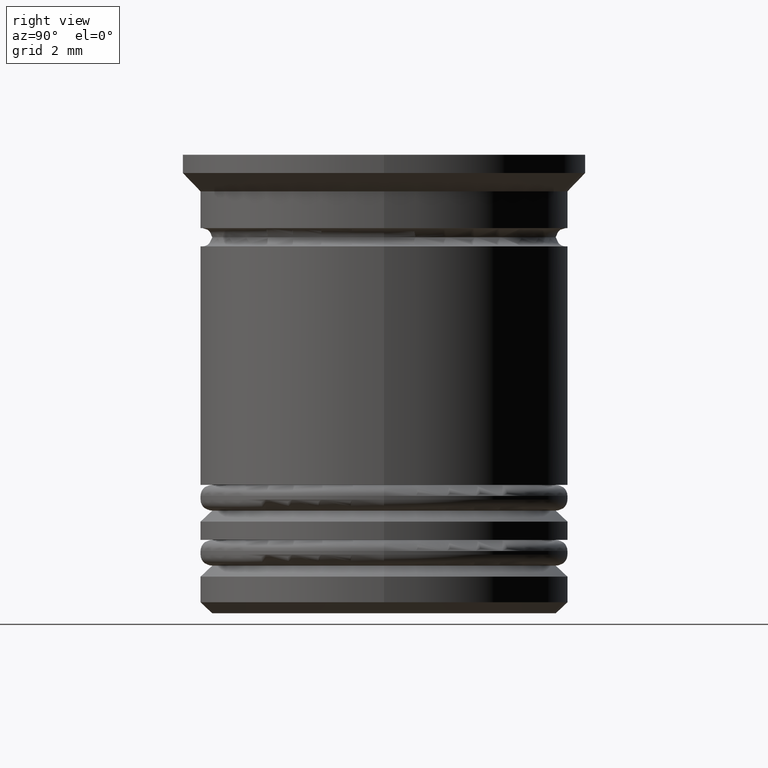
[diagram: clean part render]
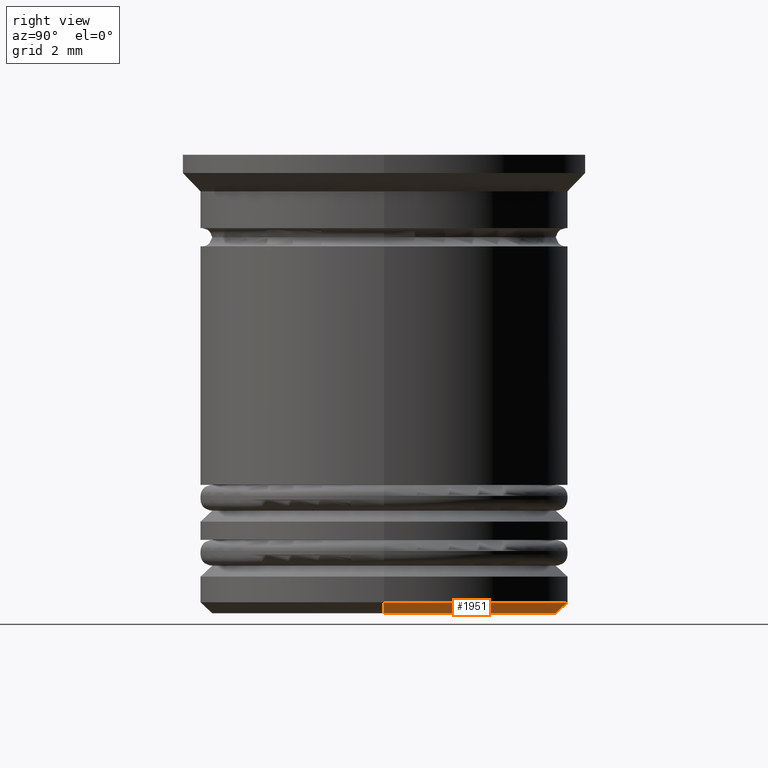
[diagram: same view with one face highlighted and labeled with its STEP entity id]
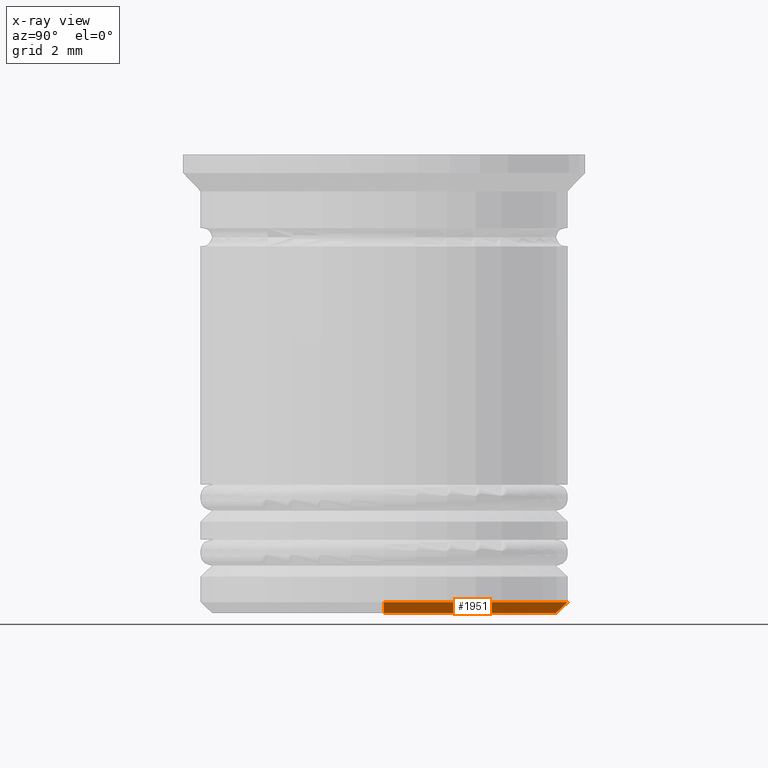
[diagram: x-ray of the same camera — body ghosted, the highlighted face saturated]
A machine part, right view. The second image highlights one B-rep face of the part: STEP entity #1951.
The next image is the same camera in x-ray: the body ghosted, the highlighted face saturated — about 0% of this face is hidden behind the body in this view.
In plain terms, the highlighted conical surface has half-angle 45 deg.
Its self-contained STEP definition (entity closure, byte-faithful):
#80 = EDGE_LOOP ( 'NONE', ( #1051, #1880, #976, #1130 ) ) ;
#148 = DIRECTION ( 'NONE',  ( -0.000000000000000000, -0.000000000000000000, 1.000000000000000000 ) ) ;
#206 = CARTESIAN_POINT ( 'NONE',  ( -5.000000000000000888, 6.123233995736767268E-16, -12.19999999999999929 ) ) ;
#236 = CIRCLE ( 'NONE', #2076, 4.699999999999999289 ) ;
#271 = CARTESIAN_POINT ( 'NONE',  ( 0.000000000000000000, 0.000000000000000000, -12.19999999999999929 ) ) ;
#288 = CARTESIAN_POINT ( 'NONE',  ( 5.000000000000000888, 0.000000000000000000, -12.19999999999999929 ) ) ;
#350 = VECTOR ( 'NONE', #1107, 1000.000000000000114 ) ;
#365 = CARTESIAN_POINT ( 'NONE',  ( -4.699999999999999289, 5.939536975864662969E-16, -12.50000000000000000 ) ) ;
#466 = VERTEX_POINT ( 'NONE', #1475 ) ;
#468 = CARTESIAN_POINT ( 'NONE',  ( 5.000000000000000888, 0.000000000000000000, -12.19999999999999929 ) ) ;
#511 = DIRECTION ( 'NONE',  ( -1.000000000000000000, 0.000000000000000000, 0.000000000000000000 ) ) ;
#592 = FACE_OUTER_BOUND ( 'NONE', #80, .T. ) ;
#722 = DIRECTION ( 'NONE',  ( 0.000000000000000000, 0.000000000000000000, -1.000000000000000000 ) ) ;
#767 = CONICAL_SURFACE ( 'NONE', #998, 5.000000000000000888, 0.7853981633974482790 ) ;
#769 = CIRCLE ( 'NONE', #796, 5.000000000000000888 ) ;
#796 = AXIS2_PLACEMENT_3D ( 'NONE', #1626, #1482, #511 ) ;
#920 = DIRECTION ( 'NONE',  ( 1.000000000000000000, 0.000000000000000000, 0.000000000000000000 ) ) ;
#976 = ORIENTED_EDGE ( 'NONE', *, *, #1707, .F. ) ;
#998 = AXIS2_PLACEMENT_3D ( 'NONE', #271, #148, #920 ) ;
#1051 = ORIENTED_EDGE ( 'NONE', *, *, #1770, .F. ) ;
#1091 = VERTEX_POINT ( 'NONE', #288 ) ;
#1107 = DIRECTION ( 'NONE',  ( 0.7071067811865474617, 0.000000000000000000, 0.7071067811865474617 ) ) ;
#1112 = EDGE_CURVE ( 'NONE', #466, #1091, #1261, .T. ) ;
#1130 = ORIENTED_EDGE ( 'NONE', *, *, #1112, .F. ) ;
#1261 = LINE ( 'NONE', #468, #350 ) ;
#1296 = CARTESIAN_POINT ( 'NONE',  ( -5.000000000000000888, 6.123233995736767268E-16, -12.19999999999999929 ) ) ;
#1475 = CARTESIAN_POINT ( 'NONE',  ( 4.699999999999999289, 0.000000000000000000, -12.50000000000000000 ) ) ;
#1482 = DIRECTION ( 'NONE',  ( -0.000000000000000000, -0.000000000000000000, 1.000000000000000000 ) ) ;
#1626 = CARTESIAN_POINT ( 'NONE',  ( 0.000000000000000000, 0.000000000000000000, -12.19999999999999929 ) ) ;
#1678 = DIRECTION ( 'NONE',  ( -0.7071067811865474617, 8.659560562354932858E-17, 0.7071067811865474617 ) ) ;
#1707 = EDGE_CURVE ( 'NONE', #1091, #2061, #769, .T. ) ;
#1721 = VERTEX_POINT ( 'NONE', #365 ) ;
#1768 = EDGE_CURVE ( 'NONE', #1721, #2061, #1803, .T. ) ;
#1770 = EDGE_CURVE ( 'NONE', #1721, #466, #236, .T. ) ;
#1803 = LINE ( 'NONE', #206, #1844 ) ;
#1843 = DIRECTION ( 'NONE',  ( -1.000000000000000000, 0.000000000000000000, 0.000000000000000000 ) ) ;
#1844 = VECTOR ( 'NONE', #1678, 1000.000000000000114 ) ;
#1880 = ORIENTED_EDGE ( 'NONE', *, *, #1768, .T. ) ;
#1951 = ADVANCED_FACE ( 'NONE', ( #592 ), #767, .T. ) ;
#1999 = CARTESIAN_POINT ( 'NONE',  ( 0.000000000000000000, 0.000000000000000000, -12.50000000000000000 ) ) ;
#2061 = VERTEX_POINT ( 'NONE', #1296 ) ;
#2076 = AXIS2_PLACEMENT_3D ( 'NONE', #1999, #722, #1843 ) ;